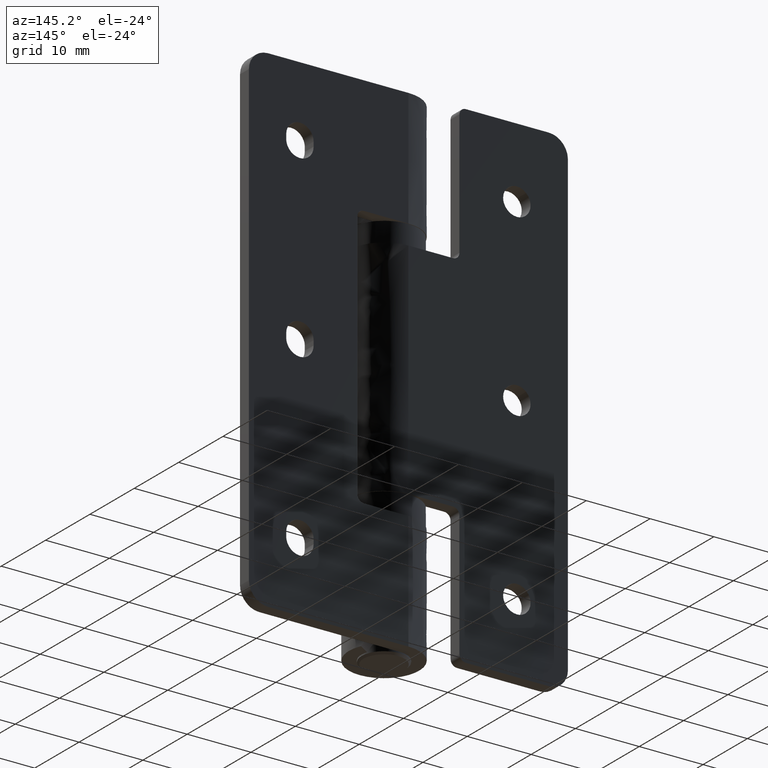
[diagram: clean part render]
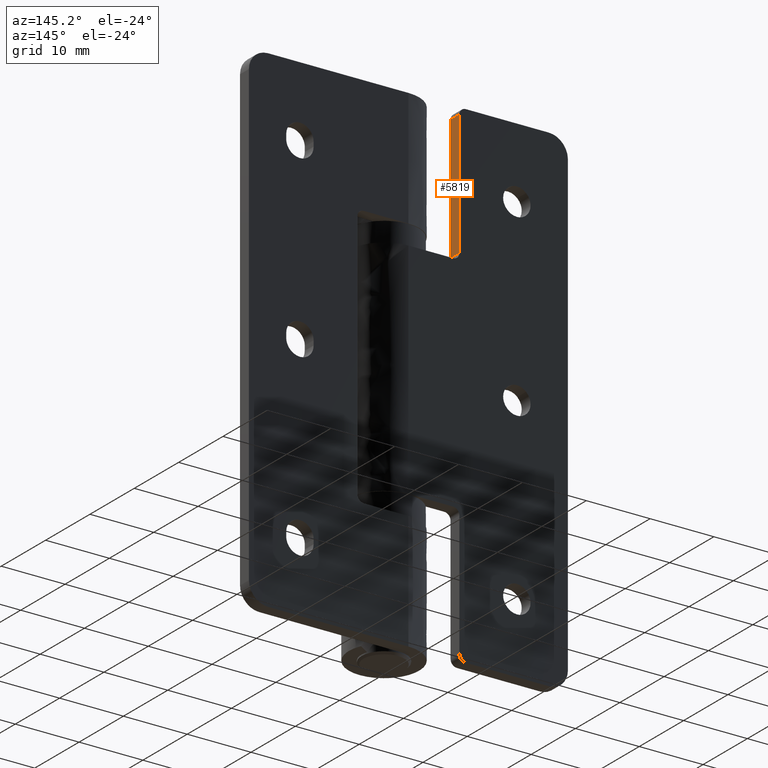
[diagram: same view with one face highlighted and labeled with its STEP entity id]
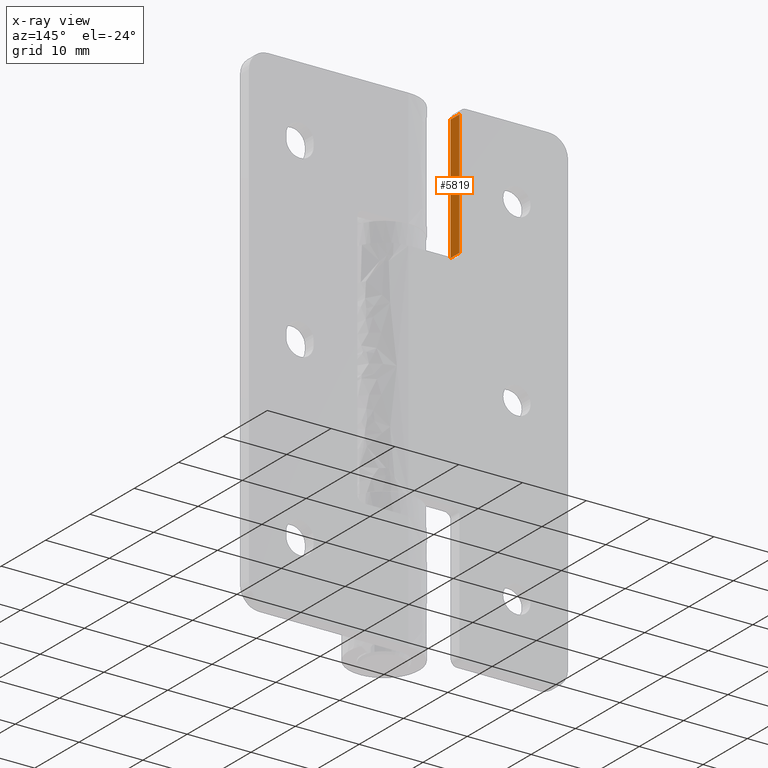
[diagram: x-ray of the same camera — body ghosted, the highlighted face saturated]
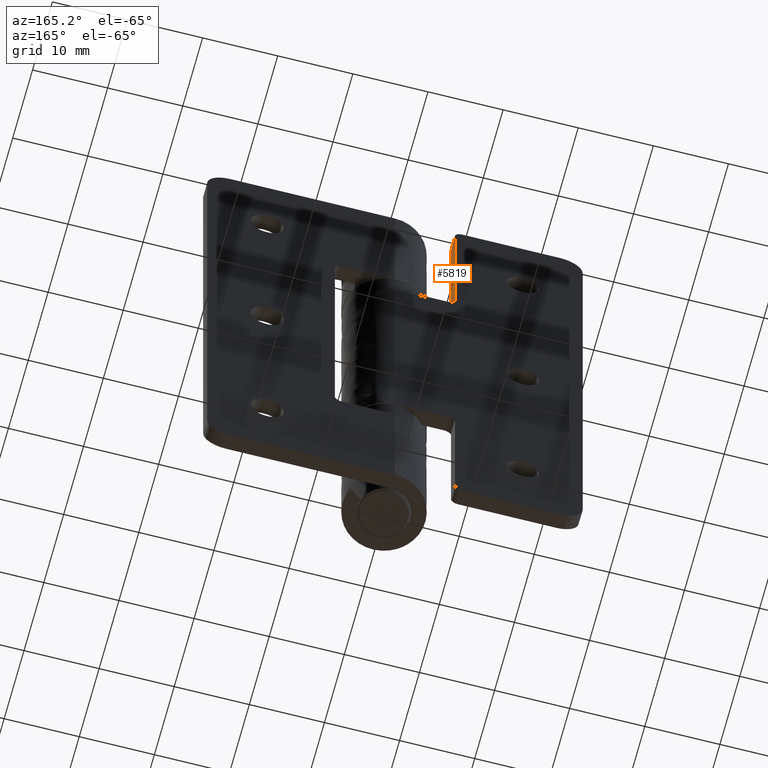
[diagram: same view with one face highlighted and labeled with its STEP entity id]
A machine part, auxiliary view. The second image highlights one B-rep face of the part: STEP entity #5819.
The next image is the same camera in x-ray: the body ghosted, the highlighted face saturated — about 0% of this face is hidden behind the body in this view.
A second angle (auxiliary view) of the same face is appended — the face is thin or edge-on in the first view.
In plain terms, the highlighted face is a freeform B-spline surface patch.
Its self-contained STEP definition (entity closure, byte-faithful):
#5599=CARTESIAN_POINT('',(-8.0,3.500000000000230,77.0));
#5600=VERTEX_POINT('',#5599);
#5614=CARTESIAN_POINT('',(-8.0,5.500000000000229,77.0));
#5615=VERTEX_POINT('',#5614);
#5616=CARTESIAN_POINT('',(-8.0,5.500000000000229,77.0));
#5617=CARTESIAN_POINT('',(-8.0,3.500000000000230,77.0));
#5618=QUASI_UNIFORM_CURVE('',1,(#5616,#5617),.UNSPECIFIED.,.F.,.U.);
#5619=EDGE_CURVE('',#5615,#5600,#5618,.T.);
#5792=CARTESIAN_POINT('',(-8.0,3.400100003876618,56.525975037794780));
#5793=CARTESIAN_POINT('',(-8.0,3.400100003876618,77.974025485235984));
#5794=CARTESIAN_POINT('',(-8.0,5.599900049768022,56.525975037794780));
#5795=CARTESIAN_POINT('',(-8.0,5.599900049768022,77.974025485235984));
#5796=B_SPLINE_SURFACE_WITH_KNOTS('',1,1,((#5792,#5794),(#5793,#5795)),.UNSPECIFIED.,.F.,.F.,.U.,(2,2),(2,2),(0.0,21.448050447441201),(0.0,2.199800045891403),.UNSPECIFIED.);
#5797=CARTESIAN_POINT('',(-8.0,5.500000000000229,57.500000000000000));
#5798=VERTEX_POINT('',#5797);
#5799=CARTESIAN_POINT('',(-8.0,5.500000000000229,57.500000000000000));
#5800=CARTESIAN_POINT('',(-8.0,5.500000000000229,77.0));
#5801=QUASI_UNIFORM_CURVE('',1,(#5799,#5800),.UNSPECIFIED.,.F.,.U.);
#5802=EDGE_CURVE('',#5798,#5615,#5801,.T.);
#5803=ORIENTED_EDGE('',*,*,#5802,.T.);
#5804=ORIENTED_EDGE('',*,*,#5619,.T.);
#5805=CARTESIAN_POINT('',(-8.0,3.500000000000230,57.500000000000000));
#5806=VERTEX_POINT('',#5805);
#5807=CARTESIAN_POINT('',(-8.0,3.500000000000230,57.500000000000000));
#5808=CARTESIAN_POINT('',(-8.0,3.500000000000230,77.0));
#5809=QUASI_UNIFORM_CURVE('',1,(#5807,#5808),.UNSPECIFIED.,.F.,.U.);
#5810=EDGE_CURVE('',#5806,#5600,#5809,.T.);
#5811=ORIENTED_EDGE('',*,*,#5810,.F.);
#5812=CARTESIAN_POINT('',(-8.0,3.500000000000230,57.500000000000000));
#5813=CARTESIAN_POINT('',(-8.0,5.500000000000229,57.500000000000000));
#5814=QUASI_UNIFORM_CURVE('',1,(#5812,#5813),.UNSPECIFIED.,.F.,.U.);
#5815=EDGE_CURVE('',#5806,#5798,#5814,.T.);
#5816=ORIENTED_EDGE('',*,*,#5815,.T.);
#5817=EDGE_LOOP('',(#5803,#5804,#5811,#5816));
#5818=FACE_OUTER_BOUND('',#5817,.T.);
#5819=ADVANCED_FACE('',(#5818),#5796,.F.);